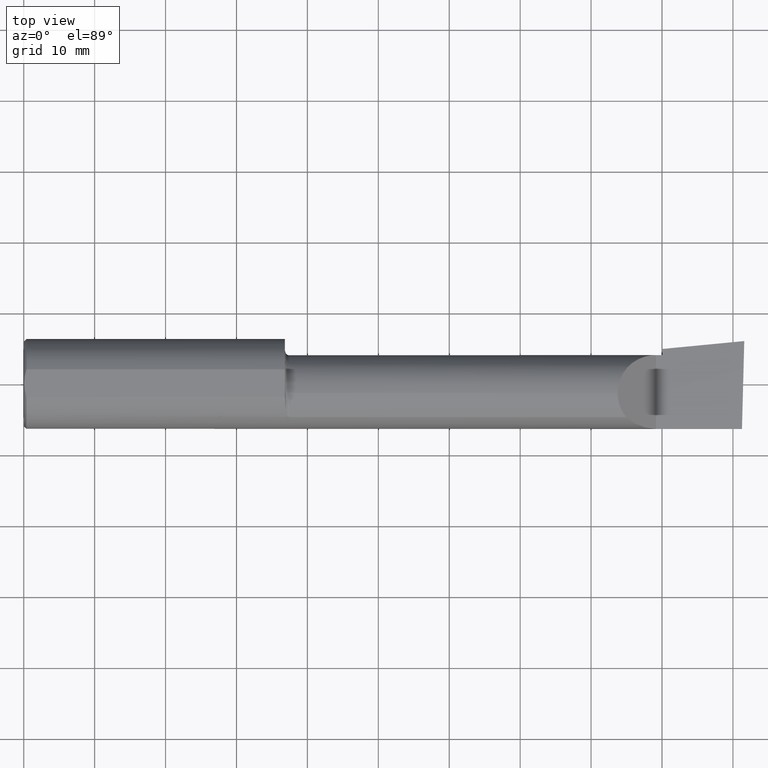
[diagram: clean part render]
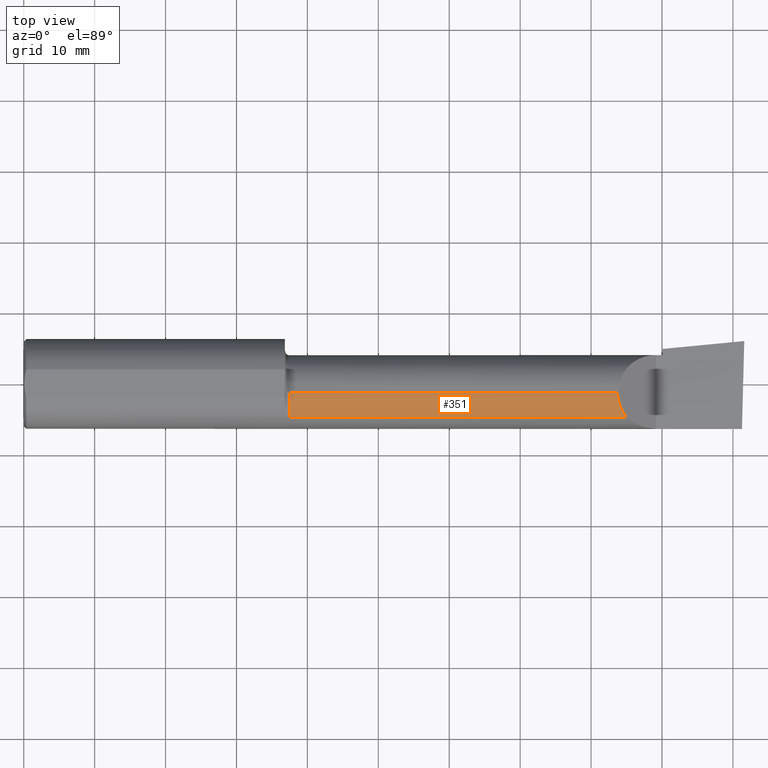
[diagram: same view with one face highlighted and labeled with its STEP entity id]
A machine part, top view. The second image highlights one B-rep face of the part: STEP entity #351.
In plain terms, the highlighted cylindrical surface (partial cylindrical patch) has radius 5.414 mm, axis along (-1, -0, -0).
Its self-contained STEP definition (entity closure, byte-faithful):
#2 = CARTESIAN_POINT ( 'NONE',  ( 3.344079160038590626, -0.1868028301886809628, 0.1659208399614071627 ) ) ;
#55 = CIRCLE ( 'NONE', #242, 0.2131499999999997008 ) ;
#58 = CARTESIAN_POINT ( 'NONE',  ( 1.474999999999999867, -0.05299999999999998462, 0.000000000000000000 ) ) ;
#77 = CARTESIAN_POINT ( 'NONE',  ( 0.000000000000000000, -0.05299999999999998462, 0.2131499999999999229 ) ) ;
#104 = FACE_OUTER_BOUND ( 'NONE', #348, .T. ) ;
#116 = ORIENTED_EDGE ( 'NONE', *, *, #345, .T. ) ;
#118 = VERTEX_POINT ( 'NONE', #384 ) ;
#121 = ORIENTED_EDGE ( 'NONE', *, *, #632, .F. ) ;
#142 = LINE ( 'NONE', #505, #413 ) ;
#153 = DIRECTION ( 'NONE',  ( 0.000000000000000000, 0.000000000000000000, 1.000000000000000000 ) ) ;
#199 = VERTEX_POINT ( 'NONE', #206 ) ;
#206 = CARTESIAN_POINT ( 'NONE',  ( 1.474999999999999867, -0.05299999999999998462, 0.2131499999999997008 ) ) ;
#241 = CARTESIAN_POINT ( 'NONE',  ( 3.296849999999996061, -0.1021668565906577175, 0.2131499999999998951 ) ) ;
#242 = AXIS2_PLACEMENT_3D ( 'NONE', #58, #298, #409 ) ;
#262 = DIRECTION ( 'NONE',  ( 1.000000000000000000, 0.000000000000000000, 0.000000000000000000 ) ) ;
#287 = CARTESIAN_POINT ( 'NONE',  ( 3.313215146136122335, -0.1485302233682073147, 0.1967848538638751199 ) ) ;
#298 = DIRECTION ( 'NONE',  ( -1.000000000000000000, -0.000000000000000000, -0.000000000000000000 ) ) ;
#300 = DIRECTION ( 'NONE',  ( -1.000000000000000000, -0.000000000000000000, -0.000000000000000000 ) ) ;
#345 = EDGE_CURVE ( 'NONE', #448, #118, #664, .T. ) ;
#348 = EDGE_LOOP ( 'NONE', ( #116, #545, #121, #665 ) ) ;
#351 = ADVANCED_FACE ( 'NONE', ( #104 ), #491, .T. ) ;
#384 = CARTESIAN_POINT ( 'NONE',  ( 3.296849999999997394, -0.05299999999999998462, 0.2131499999999999229 ) ) ;
#409 = DIRECTION ( 'NONE',  ( 0.000000000000000000, 0.000000000000000000, 1.000000000000000000 ) ) ;
#413 = VECTOR ( 'NONE', #262, 39.37007874015748143 ) ;
#436 = EDGE_CURVE ( 'NONE', #469, #448, #142, .T. ) ;
#442 = DIRECTION ( 'NONE',  ( -1.000000000000000000, -0.000000000000000000, -0.000000000000000000 ) ) ;
#443 = AXIS2_PLACEMENT_3D ( 'NONE', #530, #300, #153 ) ;
#448 = VERTEX_POINT ( 'NONE', #634 ) ;
#469 = VERTEX_POINT ( 'NONE', #641 ) ;
#491 = CYLINDRICAL_SURFACE ( 'NONE', #443, 0.2131499999999999229 ) ;
#505 = CARTESIAN_POINT ( 'NONE',  ( 2.510000000000000231, -0.1868028301886796583, 0.1659208399614084672 ) ) ;
#527 = EDGE_CURVE ( 'NONE', #118, #199, #555, .T. ) ;
#530 = CARTESIAN_POINT ( 'NONE',  ( 0.000000000000000000, -0.05299999999999998462, 0.000000000000000000 ) ) ;
#545 = ORIENTED_EDGE ( 'NONE', *, *, #527, .T. ) ;
#555 = LINE ( 'NONE', #77, #707 ) ;
#632 = EDGE_CURVE ( 'NONE', #469, #199, #55, .T. ) ;
#634 = CARTESIAN_POINT ( 'NONE',  ( 3.344079160038590626, -0.1868028301886809628, 0.1659208399614071627 ) ) ;
#641 = CARTESIAN_POINT ( 'NONE',  ( 1.474999999999999867, -0.1868028301886799636, 0.1659208399614079399 ) ) ;
#664 =( BOUNDED_CURVE ( )  B_SPLINE_CURVE ( 3, ( #2, #287, #241, #735 ),
 .UNSPECIFIED., .F., .T. ) 
 B_SPLINE_CURVE_WITH_KNOTS ( ( 4, 4 ),
 ( 5.604538515477337057, 6.283185307179586232 ),
 .UNSPECIFIED. ) 
 CURVE ( )  GEOMETRIC_REPRESENTATION_ITEM ( )  RATIONAL_B_SPLINE_CURVE ( ( 1.000000000000000000, 0.9619867256453012994, 0.9619867256453012994, 1.000000000000000000 ) ) 
 REPRESENTATION_ITEM ( '' )  );
#665 = ORIENTED_EDGE ( 'NONE', *, *, #436, .T. ) ;
#707 = VECTOR ( 'NONE', #442, 39.37007874015748143 ) ;
#735 = CARTESIAN_POINT ( 'NONE',  ( 3.296849999999997394, -0.05299999999999998462, 0.2131499999999999229 ) ) ;